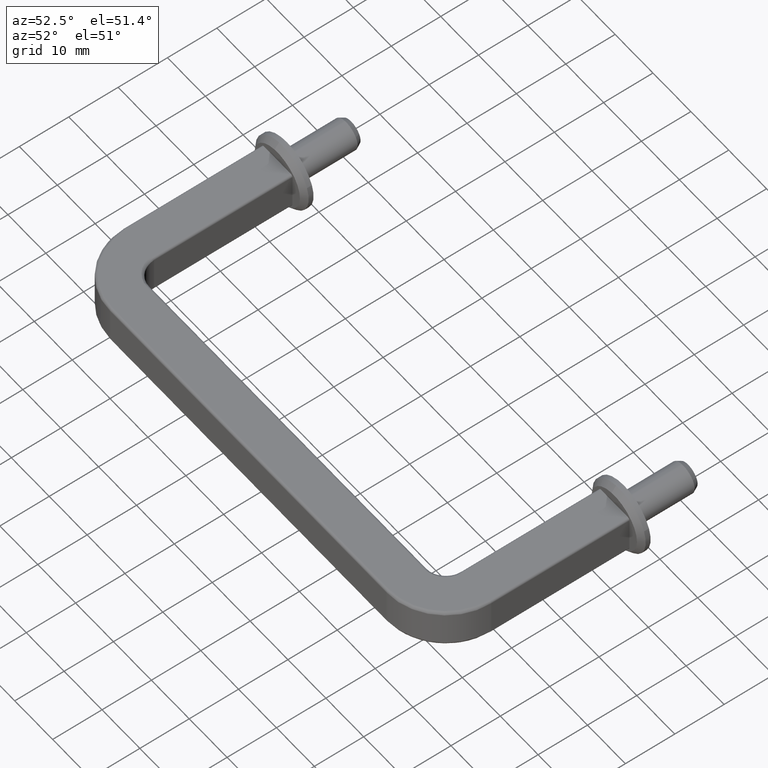
[diagram: clean part render]
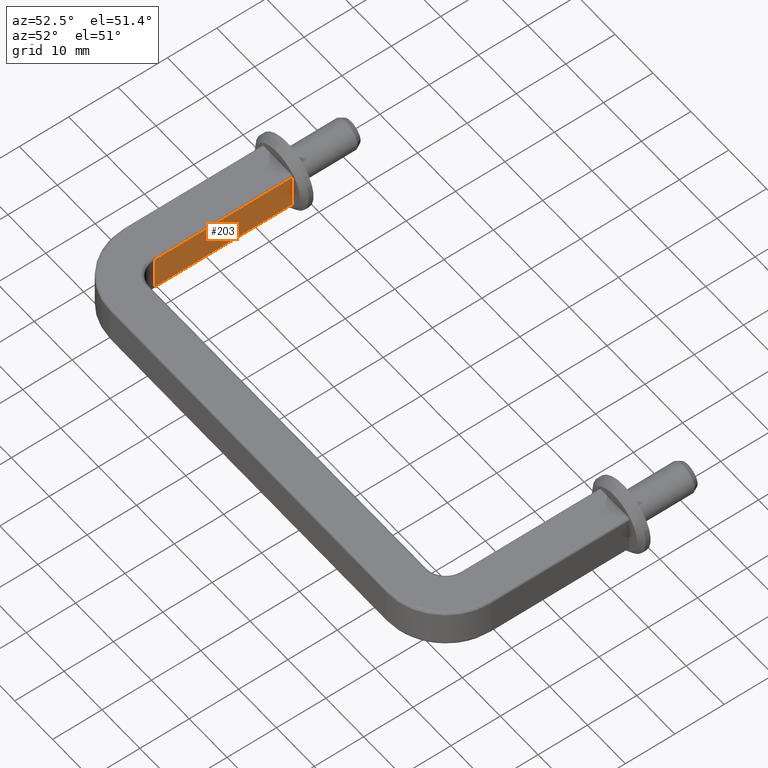
[diagram: same view with one face highlighted and labeled with its STEP entity id]
A machine part, auxiliary view. The second image highlights one B-rep face of the part: STEP entity #203.
In plain terms, the highlighted planar face has unit normal (1, 0, 0).
Its self-contained STEP definition (entity closure, byte-faithful):
#203=ADVANCED_FACE('',(#578),#577,.T.);
#577=PLANE('',#1142);
#578=FACE_OUTER_BOUND('',#1143,.T.);
#1139=CARTESIAN_POINT('',(-4.05000000000E+01,-4.20000000000E+00,4.58000000000E+01));
#1140=DIRECTION('',(1.00000000000E+00,-0.00000000000E+00,0.00000000000E+00));
#1141=DIRECTION('',(0.00000000000E+00,0.00000000000E+00,-1.00000000000E+00));
#1142=AXIS2_PLACEMENT_3D('',#1139,#1140,#1141);
#1143=EDGE_LOOP('',(#1375,#1376,#1377,#1378));
#1375=ORIENTED_EDGE('',*,*,#1543,.T.);
#1376=ORIENTED_EDGE('',*,*,#1530,.F.);
#1377=ORIENTED_EDGE('',*,*,#1545,.F.);
#1378=ORIENTED_EDGE('',*,*,#1546,.T.);
#1530=EDGE_CURVE('',#2092,#2079,#2099,.T.);
#1543=EDGE_CURVE('',#2183,#2079,#2184,.T.);
#1545=EDGE_CURVE('',#2196,#2092,#2197,.T.);
#1546=EDGE_CURVE('',#2196,#2183,#2203,.T.);
#2079=VERTEX_POINT('',#2688);
#2092=VERTEX_POINT('',#2697);
#2099=LINE('',#2702,#2703);
#2183=VERTEX_POINT('',#2752);
#2184=LINE('',#2753,#2754);
#2196=VERTEX_POINT('',#2760);
#2197=LINE('',#2761,#2762);
#2203=LINE('',#2764,#2765);
#2688=CARTESIAN_POINT('',(-4.05000000000E+01,3.50000000000E+00,4.30000000000E+01));
#2697=CARTESIAN_POINT('',(-4.05000000000E+01,-3.50000000000E+00,4.30000000000E+01));
#2702=CARTESIAN_POINT('',(-4.05000000000E+01,-3.50000000000E+00,4.30000000000E+01));
#2703=VECTOR('',#2704,7.00000000000E+00);
#2704=DIRECTION('',(0.00000000000E+00,1.00000000000E+00,0.00000000000E+00));
#2752=CARTESIAN_POINT('',(-4.05000000000E+01,3.50000000000E+00,1.50000000000E+01));
#2753=CARTESIAN_POINT('',(-4.05000000000E+01,3.50000000000E+00,1.50000000000E+01));
#2754=VECTOR('',#2755,2.80000000000E+01);
#2755=DIRECTION('',(0.00000000000E+00,0.00000000000E+00,1.00000000000E+00));
#2760=CARTESIAN_POINT('',(-4.05000000000E+01,-3.50000000000E+00,1.50000000000E+01));
#2761=CARTESIAN_POINT('',(-4.05000000000E+01,-3.50000000000E+00,1.50000000000E+01));
#2762=VECTOR('',#2763,2.80000000000E+01);
#2763=DIRECTION('',(0.00000000000E+00,0.00000000000E+00,1.00000000000E+00));
#2764=CARTESIAN_POINT('',(-4.05000000000E+01,-3.50000000000E+00,1.50000000000E+01));
#2765=VECTOR('',#2766,7.00000000000E+00);
#2766=DIRECTION('',(0.00000000000E+00,1.00000000000E+00,0.00000000000E+00));